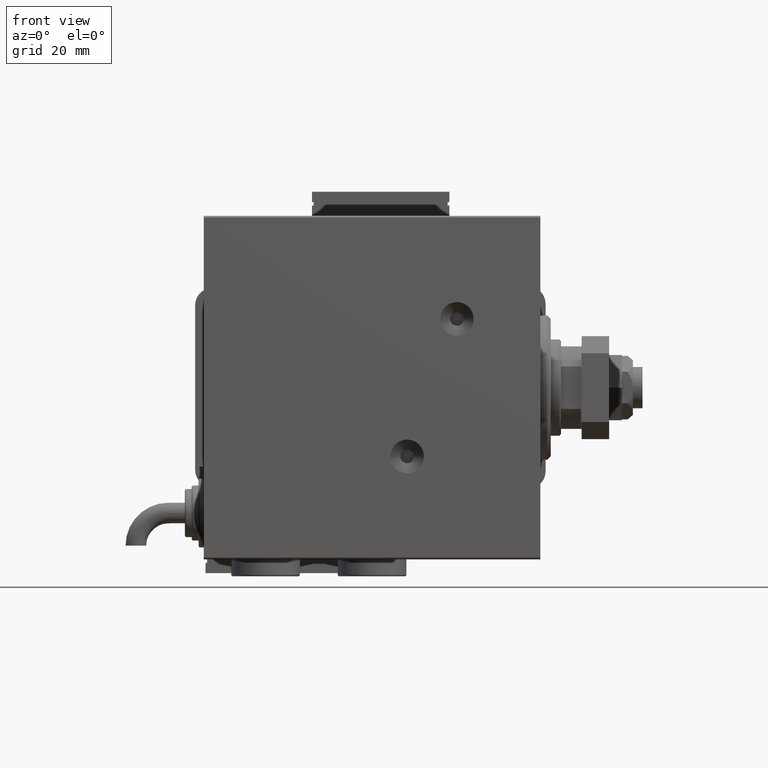
[diagram: clean part render]
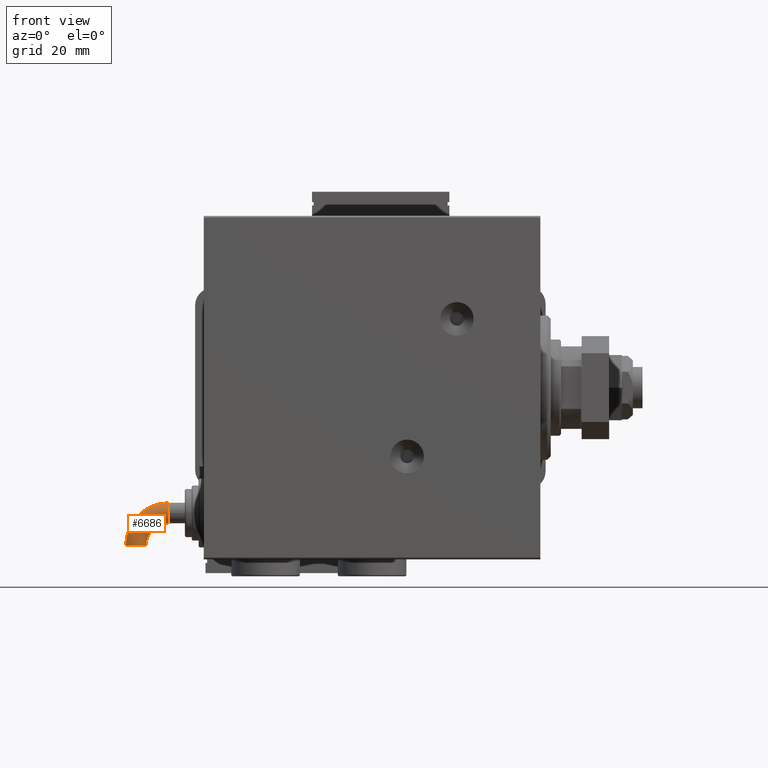
[diagram: same view with one face highlighted and labeled with its STEP entity id]
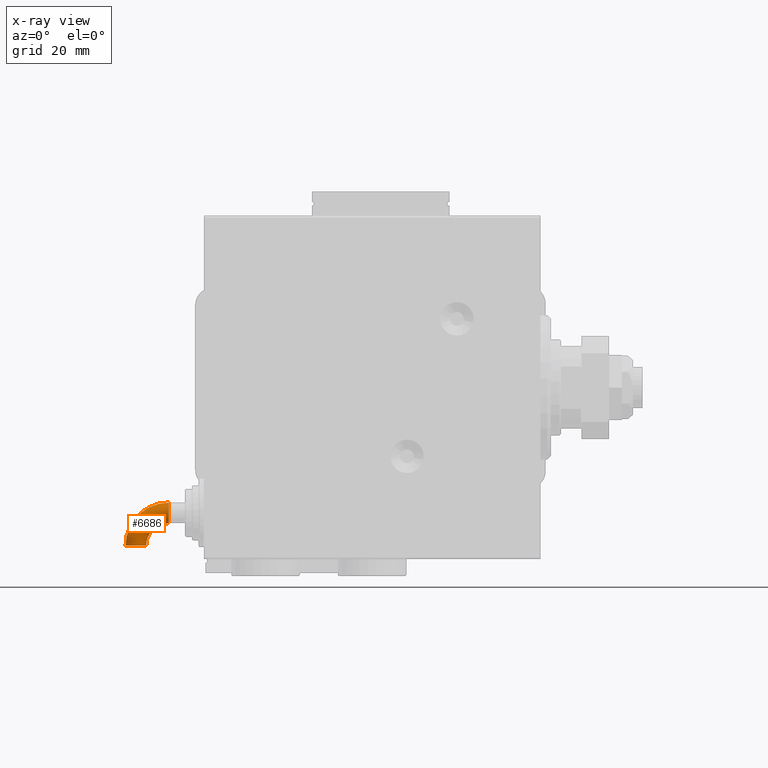
[diagram: x-ray of the same camera — body ghosted, the highlighted face saturated]
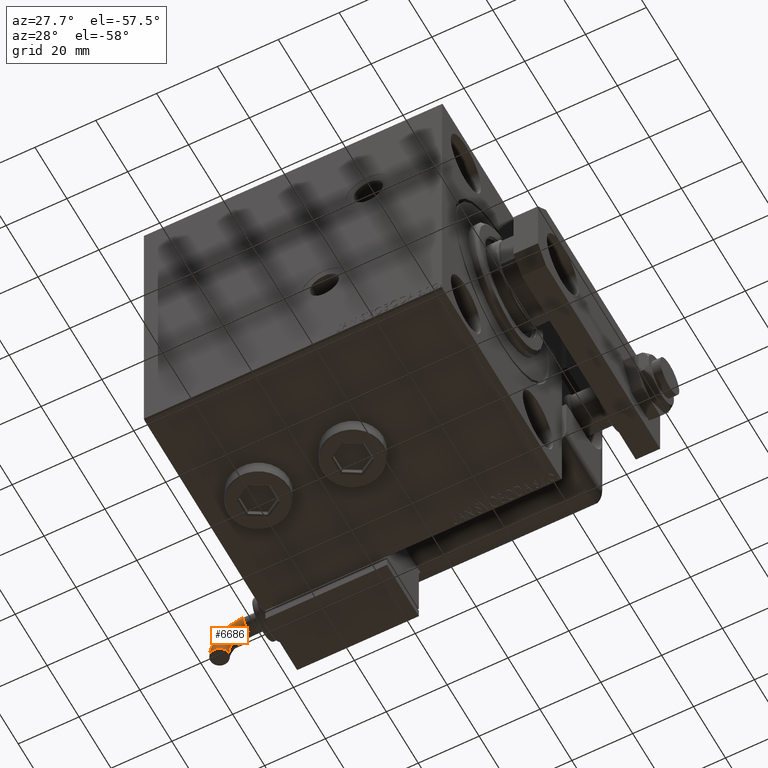
[diagram: same view with one face highlighted and labeled with its STEP entity id]
A machine part, front view. The second image highlights one B-rep face of the part: STEP entity #6686.
The next image is the same camera in x-ray: the body ghosted, the highlighted face saturated — about 0% of this face is hidden behind the body in this view.
A second angle (auxiliary view) of the same face is appended — the face is thin or edge-on in the first view.
In plain terms, the highlighted toroidal blend (fillet) surface has major radius 9.5072 mm and minor (blend) radius 3 mm.
Its self-contained STEP definition (entity closure, byte-faithful):
#532 = ORIENTED_EDGE ( 'NONE', *, *, #19273, .F. ) ;
#2406 = AXIS2_PLACEMENT_3D ( 'NONE', #26991, #35721, #7960 ) ;
#4300 = EDGE_CURVE ( 'NONE', #47319, #7300, #4530, .T. ) ;
#4530 = CIRCLE ( 'NONE', #53401, 2.999999999999996003 ) ;
#6686 = ADVANCED_FACE ( 'NONE', ( #17937 ), #16579, .T. ) ;
#6894 = ORIENTED_EDGE ( 'NONE', *, *, #58631, .F. ) ;
#7300 = VERTEX_POINT ( 'NONE', #30921 ) ;
#7435 = ORIENTED_EDGE ( 'NONE', *, *, #29503, .T. ) ;
#7960 = DIRECTION ( 'NONE',  ( -0.9999999999726024713, -7.402363701169985951E-06, 0.000000000000000000 ) ) ;
#8689 = DIRECTION ( 'NONE',  ( -1.156482317317872908E-15, 1.000000000000000000, 0.000000000000000000 ) ) ;
#9352 = AXIS2_PLACEMENT_3D ( 'NONE', #51174, #60573, #17783 ) ;
#10604 = AXIS2_PLACEMENT_3D ( 'NONE', #51638, #22616, #51022 ) ;
#16579 = TOROIDAL_SURFACE ( 'NONE', #10604, 9.507211519273964129, 2.999999999999996891 ) ;
#17783 = DIRECTION ( 'NONE',  ( 1.000000000000000000, 0.000000000000000000, 0.000000000000000000 ) ) ;
#17937 = FACE_OUTER_BOUND ( 'NONE', #54079, .T. ) ;
#19273 = EDGE_CURVE ( 'NONE', #7300, #30180, #26069, .T. ) ;
#22324 = CIRCLE ( 'NONE', #9352, 12.50721151927396058 ) ;
#22616 = DIRECTION ( 'NONE',  ( 0.000000000000000000, 0.000000000000000000, 1.000000000000000000 ) ) ;
#22981 = CARTESIAN_POINT ( 'NONE',  ( -30.75201677704342274, -9.507211519273942812, -3.673940397442055924E-16 ) ) ;
#26069 = CIRCLE ( 'NONE', #54987, 6.507211519273966793 ) ;
#26991 = CARTESIAN_POINT ( 'NONE',  ( -40.25922829605691078, -9.507281895111381331, 0.000000000000000000 ) ) ;
#29503 = EDGE_CURVE ( 'NONE', #51978, #60982, #22324, .T. ) ;
#30076 = EDGE_CURVE ( 'NONE', #60982, #30180, #51249, .T. ) ;
#30180 = VERTEX_POINT ( 'NONE', #60427 ) ;
#30921 = CARTESIAN_POINT ( 'NONE',  ( -30.75201677704341918, -2.999999999999976463, -3.673940397442056910E-16 ) ) ;
#31328 = DIRECTION ( 'NONE',  ( -1.156482317317872908E-15, 1.000000000000000000, 0.000000000000000000 ) ) ;
#32697 = CARTESIAN_POINT ( 'NONE',  ( -30.75201677704342274, 2.081668171172168513E-14, 0.000000000000000000 ) ) ;
#32822 = CARTESIAN_POINT ( 'NONE',  ( -43.25922829597471519, -9.507304102202486007, 0.000000000000000000 ) ) ;
#35721 = DIRECTION ( 'NONE',  ( -7.402363701065945741E-06, 0.9999999999726024713, 0.000000000000000000 ) ) ;
#42615 = DIRECTION ( 'NONE',  ( 1.000000000000000000, 0.000000000000000000, 0.000000000000000000 ) ) ;
#43623 = DIRECTION ( 'NONE',  ( 1.000000000000000000, 1.025520576932673761E-15, 0.000000000000000000 ) ) ;
#44019 = AXIS2_PLACEMENT_3D ( 'NONE', #48308, #43623, #31328 ) ;
#44269 = ORIENTED_EDGE ( 'NONE', *, *, #4300, .F. ) ;
#44529 = CARTESIAN_POINT ( 'NONE',  ( -30.75201677704342274, 2.081668171172168829E-14, 2.999999999999997335 ) ) ;
#47319 = VERTEX_POINT ( 'NONE', #44529 ) ;
#48064 = ORIENTED_EDGE ( 'NONE', *, *, #30076, .T. ) ;
#48308 = CARTESIAN_POINT ( 'NONE',  ( -30.75201677704342274, 2.081668171172168513E-14, 0.000000000000000000 ) ) ;
#51022 = DIRECTION ( 'NONE',  ( 1.000000000000000000, 0.000000000000000000, 0.000000000000000000 ) ) ;
#51174 = CARTESIAN_POINT ( 'NONE',  ( -30.75201677704342274, -9.507211519273942812, 0.000000000000000000 ) ) ;
#51249 = CIRCLE ( 'NONE', #2406, 2.999999999999996891 ) ;
#51638 = CARTESIAN_POINT ( 'NONE',  ( -30.75201677704342274, -9.507211519273942812, 0.000000000000000000 ) ) ;
#51978 = VERTEX_POINT ( 'NONE', #53684 ) ;
#52627 = DIRECTION ( 'NONE',  ( 0.000000000000000000, 0.000000000000000000, 1.000000000000000000 ) ) ;
#53401 = AXIS2_PLACEMENT_3D ( 'NONE', #32697, #60543, #8689 ) ;
#53684 = CARTESIAN_POINT ( 'NONE',  ( -30.75201677704342629, 3.000000000000017319, 0.000000000000000000 ) ) ;
#54079 = EDGE_LOOP ( 'NONE', ( #6894, #7435, #48064, #532, #44269 ) ) ;
#54987 = AXIS2_PLACEMENT_3D ( 'NONE', #22981, #52627, #42615 ) ;
#56061 = CIRCLE ( 'NONE', #44019, 2.999999999999996003 ) ;
#58631 = EDGE_CURVE ( 'NONE', #51978, #47319, #56061, .T. ) ;
#60427 = CARTESIAN_POINT ( 'NONE',  ( -37.25922829613910636, -9.507259688020280208, -3.673940397551225891E-16 ) ) ;
#60543 = DIRECTION ( 'NONE',  ( 1.000000000000000000, 1.025520576932673761E-15, 0.000000000000000000 ) ) ;
#60573 = DIRECTION ( 'NONE',  ( 0.000000000000000000, 0.000000000000000000, 1.000000000000000000 ) ) ;
#60982 = VERTEX_POINT ( 'NONE', #32822 ) ;